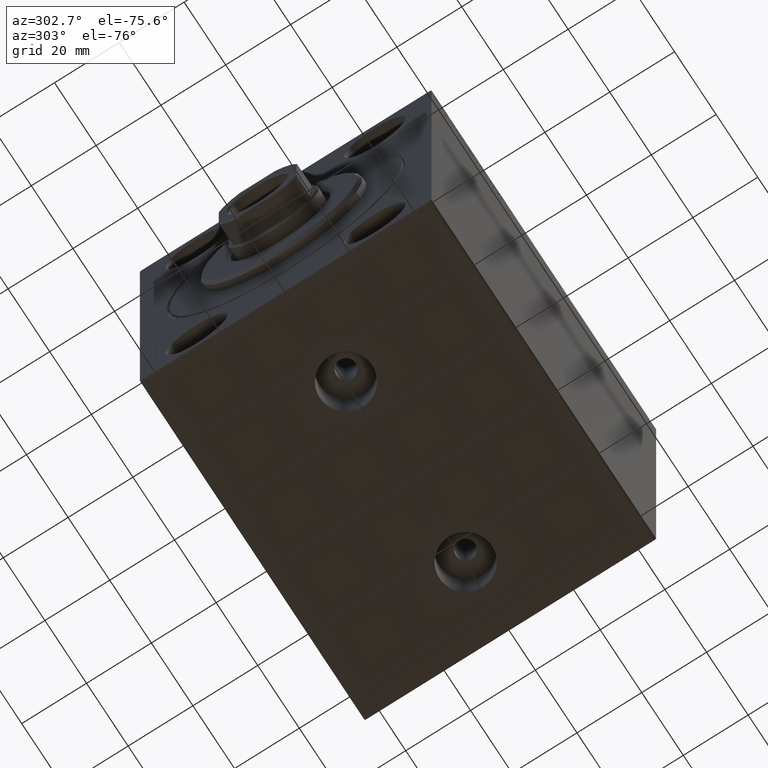
[diagram: clean part render]
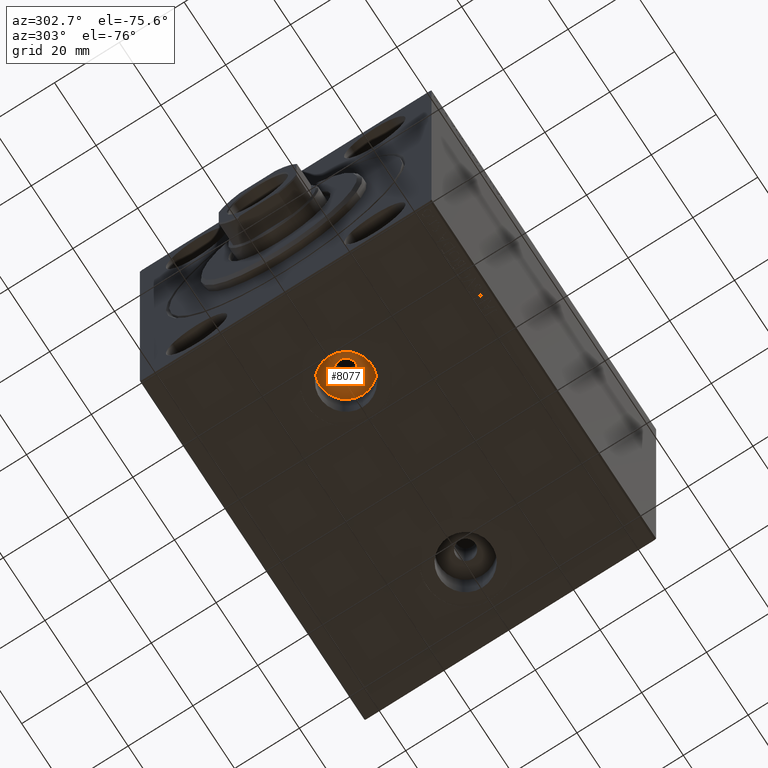
[diagram: same view with one face highlighted and labeled with its STEP entity id]
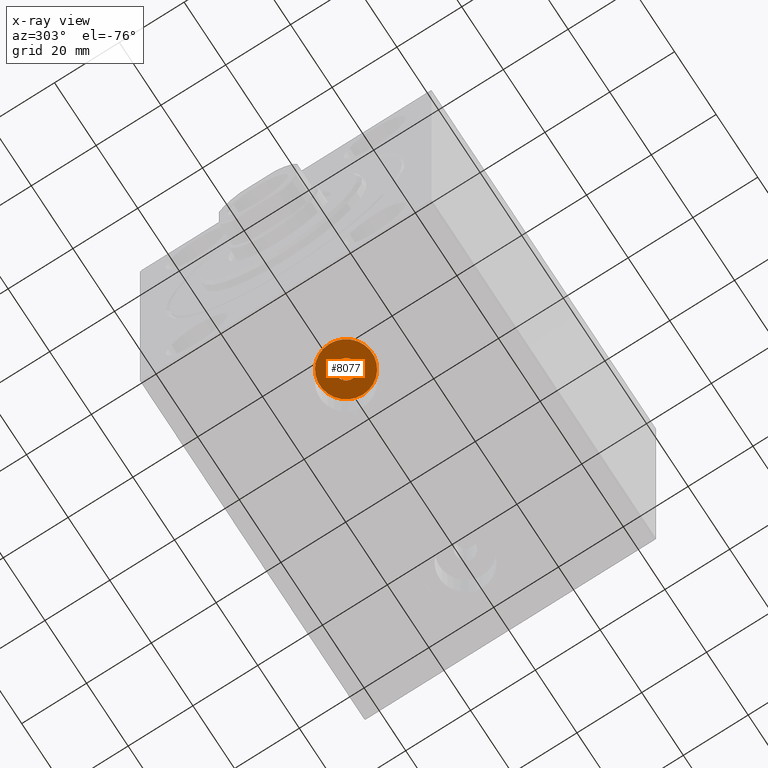
[diagram: x-ray of the same camera — body ghosted, the highlighted face saturated]
A machine part, auxiliary view. The second image highlights one B-rep face of the part: STEP entity #8077.
The next image is the same camera in x-ray: the body ghosted, the highlighted face saturated — about 0% of this face is hidden behind the body in this view.
In plain terms, the highlighted planar face has unit normal (0, 0, -1).
Its self-contained STEP definition (entity closure, byte-faithful):
#444 = VERTEX_POINT ( 'NONE', #41406 ) ;
#870 = DIRECTION ( 'NONE',  ( -1.000000000000000000, 0.000000000000000000, 0.000000000000000000 ) ) ;
#1403 = AXIS2_PLACEMENT_3D ( 'NONE', #29557, #36243, #43143 ) ;
#4372 = EDGE_CURVE ( 'NONE', #4585, #34402, #12725, .T. ) ;
#4585 = VERTEX_POINT ( 'NONE', #35722 ) ;
#5213 = ORIENTED_EDGE ( 'NONE', *, *, #4372, .F. ) ;
#6537 = DIRECTION ( 'NONE',  ( 0.000000000000000000, 0.000000000000000000, -1.000000000000000000 ) ) ;
#8077 = ADVANCED_FACE ( 'NONE', ( #23315, #9050 ), #15949, .T. ) ;
#8685 = CIRCLE ( 'NONE', #17243, 8.084999999999999076 ) ;
#9050 = FACE_OUTER_BOUND ( 'NONE', #23812, .T. ) ;
#9905 = ORIENTED_EDGE ( 'NONE', *, *, #43686, .T. ) ;
#11863 = CARTESIAN_POINT ( 'NONE',  ( 20.91500000000000270, -6.196433163362529681E-15, -44.50000000000000711 ) ) ;
#12725 = CIRCLE ( 'NONE', #31942, 2.999999999999999112 ) ;
#12899 = VERTEX_POINT ( 'NONE', #11863 ) ;
#13036 = EDGE_CURVE ( 'NONE', #12899, #444, #8685, .T. ) ;
#14509 = ORIENTED_EDGE ( 'NONE', *, *, #13036, .T. ) ;
#14549 = DIRECTION ( 'NONE',  ( -1.000000000000000000, 0.000000000000000000, 0.000000000000000000 ) ) ;
#15949 = PLANE ( 'NONE',  #1403 ) ;
#16212 = EDGE_LOOP ( 'NONE', ( #5213, #20954 ) ) ;
#17243 = AXIS2_PLACEMENT_3D ( 'NONE', #17832, #31423, #870 ) ;
#17832 = CARTESIAN_POINT ( 'NONE',  ( 29.00000000000000000, -6.196433163362529681E-15, -44.50000000000000711 ) ) ;
#18345 = DIRECTION ( 'NONE',  ( 0.000000000000000000, 0.000000000000000000, -1.000000000000000000 ) ) ;
#20954 = ORIENTED_EDGE ( 'NONE', *, *, #38982, .F. ) ;
#21694 = CARTESIAN_POINT ( 'NONE',  ( 29.00000000000000000, -6.196433163362529681E-15, -44.50000000000000711 ) ) ;
#22810 = AXIS2_PLACEMENT_3D ( 'NONE', #21694, #18345, #14549 ) ;
#23315 = FACE_BOUND ( 'NONE', #16212, .T. ) ;
#23717 = DIRECTION ( 'NONE',  ( -1.000000000000000000, 0.000000000000000000, 0.000000000000000000 ) ) ;
#23812 = EDGE_LOOP ( 'NONE', ( #14509, #9905 ) ) ;
#26937 = AXIS2_PLACEMENT_3D ( 'NONE', #32385, #28824, #38654 ) ;
#27024 = CIRCLE ( 'NONE', #22810, 8.084999999999999076 ) ;
#28824 = DIRECTION ( 'NONE',  ( 0.000000000000000000, 0.000000000000000000, -1.000000000000000000 ) ) ;
#29557 = CARTESIAN_POINT ( 'NONE',  ( 29.00000000000000000, -6.196433163362529681E-15, -44.50000000000000711 ) ) ;
#31216 = CARTESIAN_POINT ( 'NONE',  ( 32.00000000000000000, -5.829039123618324237E-15, -44.50000000000000711 ) ) ;
#31423 = DIRECTION ( 'NONE',  ( 0.000000000000000000, 0.000000000000000000, -1.000000000000000000 ) ) ;
#31942 = AXIS2_PLACEMENT_3D ( 'NONE', #40663, #6537, #23717 ) ;
#32385 = CARTESIAN_POINT ( 'NONE',  ( 29.00000000000000000, -6.196433163362529681E-15, -44.50000000000000711 ) ) ;
#34402 = VERTEX_POINT ( 'NONE', #31216 ) ;
#35722 = CARTESIAN_POINT ( 'NONE',  ( 26.00000000000000355, -6.196433163362529681E-15, -44.50000000000000711 ) ) ;
#36243 = DIRECTION ( 'NONE',  ( 0.000000000000000000, 0.000000000000000000, -1.000000000000000000 ) ) ;
#38654 = DIRECTION ( 'NONE',  ( -1.000000000000000000, 0.000000000000000000, 0.000000000000000000 ) ) ;
#38982 = EDGE_CURVE ( 'NONE', #34402, #4585, #40463, .T. ) ;
#40463 = CIRCLE ( 'NONE', #26937, 2.999999999999999112 ) ;
#40663 = CARTESIAN_POINT ( 'NONE',  ( 29.00000000000000000, -6.196433163362529681E-15, -44.50000000000000711 ) ) ;
#41406 = CARTESIAN_POINT ( 'NONE',  ( 37.08500000000000085, -5.206306226251895314E-15, -44.50000000000000711 ) ) ;
#43143 = DIRECTION ( 'NONE',  ( -1.000000000000000000, 0.000000000000000000, -0.000000000000000000 ) ) ;
#43686 = EDGE_CURVE ( 'NONE', #444, #12899, #27024, .T. ) ;